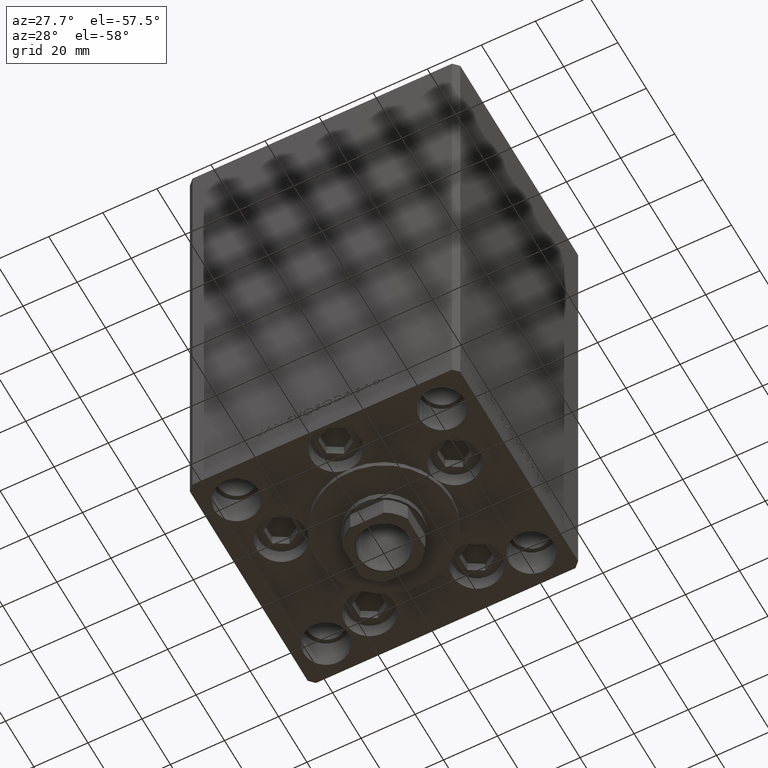
[diagram: clean part render]
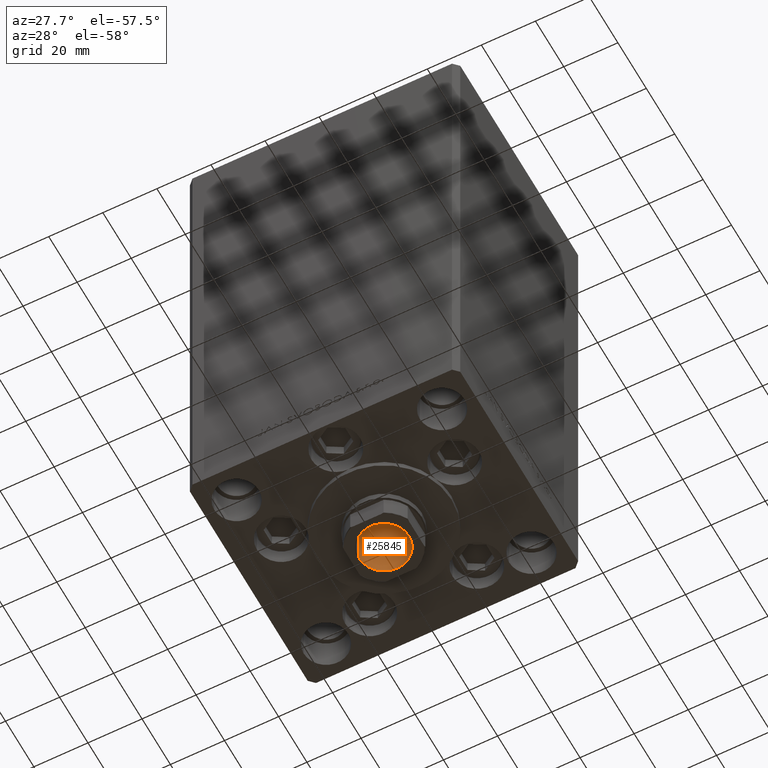
[diagram: same view with one face highlighted and labeled with its STEP entity id]
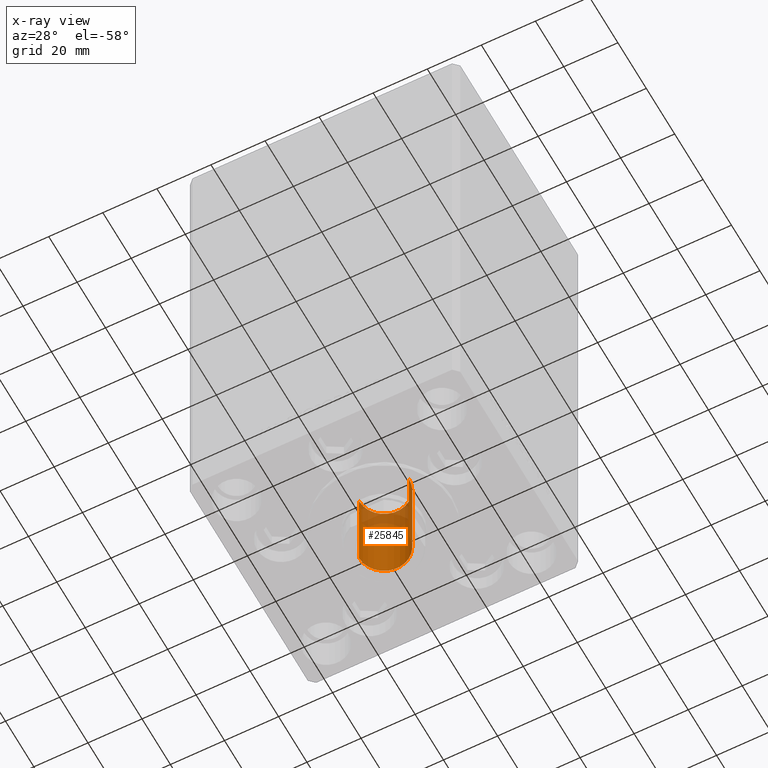
[diagram: x-ray of the same camera — body ghosted, the highlighted face saturated]
A machine part, auxiliary view. The second image highlights one B-rep face of the part: STEP entity #25845.
The next image is the same camera in x-ray: the body ghosted, the highlighted face saturated — about 22% of this face is hidden behind the body in this view.
In plain terms, the highlighted cylindrical surface (edge-blend (fillet) strip) has radius 9.25 mm, axis along (0, 0, -1).
Its self-contained STEP definition (entity closure, byte-faithful):
#70 = DIRECTION ( 'NONE',  ( -0.000000000000000000, -0.000000000000000000, 1.000000000000000000 ) ) ;
#180 = ORIENTED_EDGE ( 'NONE', *, *, #35164, .F. ) ;
#988 = EDGE_CURVE ( 'NONE', #2744, #7022, #7596, .T. ) ;
#1778 = CIRCLE ( 'NONE', #12089, 9.249999999999994671 ) ;
#1808 = AXIS2_PLACEMENT_3D ( 'NONE', #5325, #16988, #31434 ) ;
#2744 = VERTEX_POINT ( 'NONE', #26206 ) ;
#4527 = ORIENTED_EDGE ( 'NONE', *, *, #35961, .T. ) ;
#5325 = CARTESIAN_POINT ( 'NONE',  ( 0.000000000000000000, 0.000000000000000000, 164.9499999999999886 ) ) ;
#6560 = CIRCLE ( 'NONE', #1808, 9.249999999999996447 ) ;
#7022 = VERTEX_POINT ( 'NONE', #10313 ) ;
#7596 = LINE ( 'NONE', #41662, #11742 ) ;
#10313 = CARTESIAN_POINT ( 'NONE',  ( -9.249999999999996447, 1.132798289211301304E-15, 164.9499999999999886 ) ) ;
#11742 = VECTOR ( 'NONE', #34196, 1000.000000000000000 ) ;
#12089 = AXIS2_PLACEMENT_3D ( 'NONE', #37143, #37386, #40622 ) ;
#12634 = VERTEX_POINT ( 'NONE', #34020 ) ;
#12757 = CYLINDRICAL_SURFACE ( 'NONE', #32519, 9.249999999999996447 ) ;
#13884 = VERTEX_POINT ( 'NONE', #35779 ) ;
#16555 = ORIENTED_EDGE ( 'NONE', *, *, #988, .F. ) ;
#16988 = DIRECTION ( 'NONE',  ( 0.000000000000000000, 0.000000000000000000, 1.000000000000000000 ) ) ;
#19687 = CARTESIAN_POINT ( 'NONE',  ( 9.249999999999996447, 0.000000000000000000, 165.2500000000000000 ) ) ;
#22185 = EDGE_LOOP ( 'NONE', ( #16555, #180, #24382, #4527 ) ) ;
#24382 = ORIENTED_EDGE ( 'NONE', *, *, #36179, .T. ) ;
#25845 = ADVANCED_FACE ( 'NONE', ( #43823 ), #12757, .F. ) ;
#26206 = CARTESIAN_POINT ( 'NONE',  ( -9.249999999999994671, 1.132798289211300909E-15, 130.2500000000000000 ) ) ;
#27923 = CARTESIAN_POINT ( 'NONE',  ( 0.000000000000000000, 0.000000000000000000, 165.2500000000000000 ) ) ;
#30879 = LINE ( 'NONE', #19687, #36707 ) ;
#31434 = DIRECTION ( 'NONE',  ( 1.000000000000000000, 0.000000000000000000, 0.000000000000000000 ) ) ;
#32519 = AXIS2_PLACEMENT_3D ( 'NONE', #27923, #43106, #39363 ) ;
#34020 = CARTESIAN_POINT ( 'NONE',  ( 9.249999999999996447, 0.000000000000000000, 164.9499999999999886 ) ) ;
#34196 = DIRECTION ( 'NONE',  ( -0.000000000000000000, -0.000000000000000000, 1.000000000000000000 ) ) ;
#35164 = EDGE_CURVE ( 'NONE', #13884, #2744, #1778, .T. ) ;
#35779 = CARTESIAN_POINT ( 'NONE',  ( 9.249999999999994671, 0.000000000000000000, 130.2500000000000000 ) ) ;
#35961 = EDGE_CURVE ( 'NONE', #12634, #7022, #6560, .T. ) ;
#36179 = EDGE_CURVE ( 'NONE', #13884, #12634, #30879, .T. ) ;
#36707 = VECTOR ( 'NONE', #70, 1000.000000000000000 ) ;
#37143 = CARTESIAN_POINT ( 'NONE',  ( 0.000000000000000000, 0.000000000000000000, 130.2500000000000000 ) ) ;
#37386 = DIRECTION ( 'NONE',  ( -0.000000000000000000, -0.000000000000000000, 1.000000000000000000 ) ) ;
#39363 = DIRECTION ( 'NONE',  ( 1.000000000000000000, 0.000000000000000000, 0.000000000000000000 ) ) ;
#40622 = DIRECTION ( 'NONE',  ( 1.000000000000000000, 0.000000000000000000, 0.000000000000000000 ) ) ;
#41662 = CARTESIAN_POINT ( 'NONE',  ( -9.249999999999996447, 1.132798289211301304E-15, 165.2500000000000000 ) ) ;
#43106 = DIRECTION ( 'NONE',  ( -0.000000000000000000, -0.000000000000000000, 1.000000000000000000 ) ) ;
#43823 = FACE_OUTER_BOUND ( 'NONE', #22185, .T. ) ;